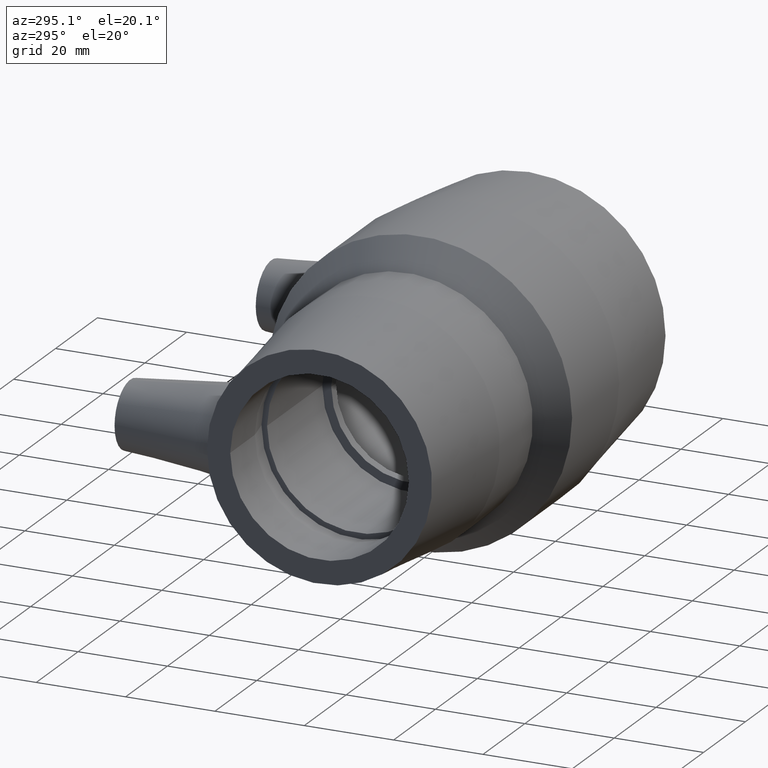
[diagram: clean part render]
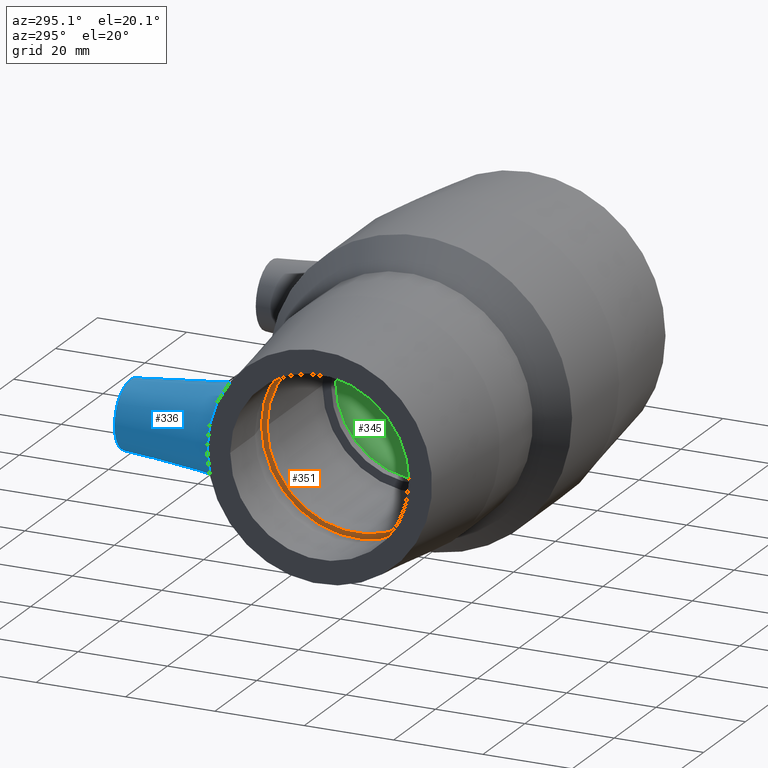
[diagram: same view with three faces highlighted in distinct colors, each labeled with its STEP entity id]
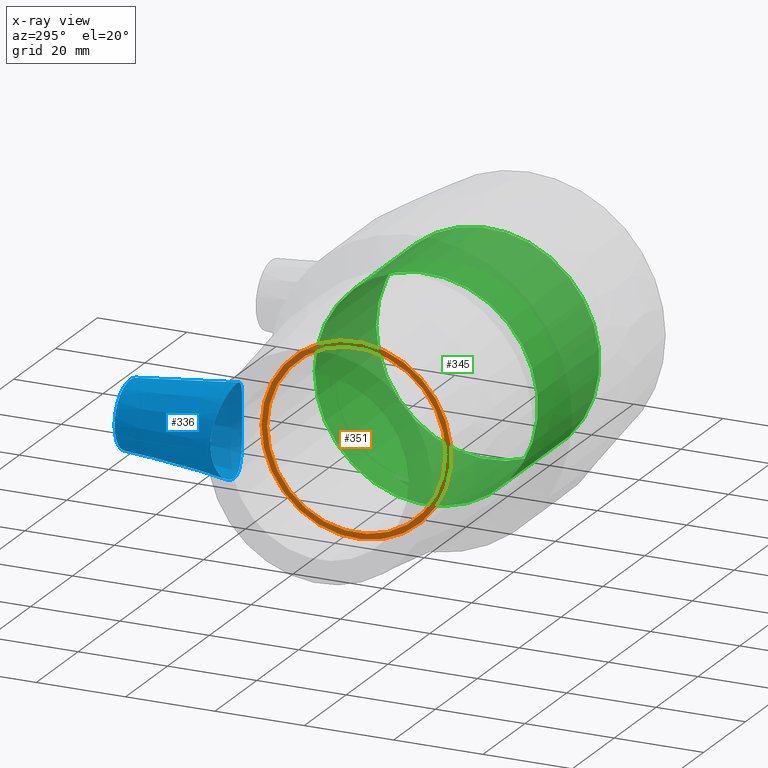
[diagram: x-ray of the same camera — body ghosted, the three highlighted faces saturated]
A machine part, auxiliary view with three faces highlighted in distinct colors.
The next image is the same camera in x-ray (body ghosted, the three faces saturated) — at least one of them is partly hidden behind the body in this view.
Their STEP definitions:

[orange] entity #351 — the highlighted planar face has unit normal (-1, -0, 0).
#50=FACE_BOUND('',#150,.T.);
#93=FACE_OUTER_BOUND('',#149,.T.);
#149=EDGE_LOOP('',(#302));
#150=EDGE_LOOP('',(#303));
#184=CIRCLE('',#408,20.);
#185=CIRCLE('',#410,21.2469984951308);
#215=VERTEX_POINT('',#685);
#216=VERTEX_POINT('',#688);
#246=EDGE_CURVE('',#215,#215,#184,.T.);
#247=EDGE_CURVE('',#216,#216,#185,.T.);
#302=ORIENTED_EDGE('',*,*,#247,.F.);
#303=ORIENTED_EDGE('',*,*,#246,.T.);
#323=PLANE('',#409);
#351=ADVANCED_FACE('',(#93,#50),#323,.T.);
#408=AXIS2_PLACEMENT_3D('',#686,#520,#521);
#409=AXIS2_PLACEMENT_3D('',#687,#522,#523);
#410=AXIS2_PLACEMENT_3D('',#689,#524,#525);
#520=DIRECTION('center_axis',(1.,1.83697019872103E-16,0.));
#521=DIRECTION('ref_axis',(0.,0.,-1.));
#522=DIRECTION('center_axis',(-1.,-1.83697019872103E-16,0.));
#523=DIRECTION('ref_axis',(0.,0.,1.));
#524=DIRECTION('center_axis',(1.,1.83697019872103E-16,0.));
#525=DIRECTION('ref_axis',(0.,0.,-1.));
#685=CARTESIAN_POINT('',(-32.4,20.,0.));
#686=CARTESIAN_POINT('Origin',(-32.4,3.23306754974901E-15,0.));
#687=CARTESIAN_POINT('Origin',(-32.4,21.2469984951308,0.));
#688=CARTESIAN_POINT('',(-32.4,21.2469984951308,0.));
#689=CARTESIAN_POINT('Origin',(-32.4,3.23306754974901E-15,0.));

[blue] entity #336 — the highlighted conical surface has half-angle 6 deg.
#16=B_SPLINE_CURVE_WITH_KNOTS('',3,(#609,#610,#611,#612,#613,#614,#615,
#616,#617,#618,#619,#620,#621,#622,#623,#624,#625,#626,#627,#628,#629,#630,
#631,#632,#633,#634,#635,#636,#637,#638,#639,#640,#641,#642),
 .UNSPECIFIED.,.T.,.F.,(4,2,2,2,2,2,2,2,2,2,2,2,2,2,2,2,4),(0.,0.361943596888965,
0.723887193777931,1.08941629483366,1.45494539588939,1.82047449694512,2.18600359800085,
2.54794719488982,2.90989079177879,3.30576732530484,3.70164385883088,4.08555674775356,
4.46946963667623,4.85338252559891,5.23729541452158,5.63317194804763,6.02904848157368),
 .UNSPECIFIED.);
#18=CONICAL_SURFACE('',#379,7.5,6.);
#34=FACE_BOUND('',#119,.T.);
#78=FACE_OUTER_BOUND('',#118,.T.);
#118=EDGE_LOOP('',(#271));
#119=EDGE_LOOP('',(#272));
#169=CIRCLE('',#378,7.5);
#199=VERTEX_POINT('',#605);
#200=VERTEX_POINT('',#608);
#230=EDGE_CURVE('',#199,#199,#169,.T.);
#231=EDGE_CURVE('',#200,#200,#16,.T.);
#271=ORIENTED_EDGE('',*,*,#230,.T.);
#272=ORIENTED_EDGE('',*,*,#231,.F.);
#336=ADVANCED_FACE('',(#78,#34),#18,.T.);
#378=AXIS2_PLACEMENT_3D('',#606,#460,#461);
#379=AXIS2_PLACEMENT_3D('',#607,#462,#463);
#460=DIRECTION('center_axis',(0.,-1.,0.));
#461=DIRECTION('ref_axis',(1.,0.,0.));
#462=DIRECTION('center_axis',(0.,-1.,0.));
#463=DIRECTION('ref_axis',(1.,0.,0.));
#605=CARTESIAN_POINT('',(-45.5,48.,9.18485099360515E-16));
#606=CARTESIAN_POINT('Origin',(-38.,48.,0.));
#607=CARTESIAN_POINT('Origin',(-38.,48.,0.));
#608=CARTESIAN_POINT('',(-38.5012523197046,24.470020217716,9.96049598715385));
#609=CARTESIAN_POINT('Ctrl Pts',(-38.5012523197046,24.470020217716,9.96049598715385));
#610=CARTESIAN_POINT('Ctrl Pts',(-39.7010019434823,24.3521637538701,9.91252263753042));
#611=CARTESIAN_POINT('Ctrl Pts',(-40.9729489293836,24.3297913743947,9.62014234649662));
#612=CARTESIAN_POINT('Ctrl Pts',(-43.2904237879436,24.4658139477323,8.55053278822265));
#613=CARTESIAN_POINT('Ctrl Pts',(-44.3366114362158,24.6174326050331,7.773882196001));
#614=CARTESIAN_POINT('Ctrl Pts',(-45.9830079409301,24.9247450482363,6.02027983612236));
#615=CARTESIAN_POINT('Ctrl Pts',(-46.6956295561316,25.1015400717959,4.91864566609986));
#616=CARTESIAN_POINT('Ctrl Pts',(-47.6406195415798,25.3540616460062,2.51800296211801));
#617=CARTESIAN_POINT('Ctrl Pts',(-47.8726622389102,25.4256267322368,1.21843033685244));
#618=CARTESIAN_POINT('Ctrl Pts',(-47.8726622389102,25.4256267322368,-1.21843033685244));
#619=CARTESIAN_POINT('Ctrl Pts',(-47.6406195415798,25.3540616460062,-2.51800296211801));
#620=CARTESIAN_POINT('Ctrl Pts',(-46.6956295561316,25.1015400717959,-4.91864566609986));
#621=CARTESIAN_POINT('Ctrl Pts',(-45.9830079409301,24.9247450482363,-6.02027983612236));
#622=CARTESIAN_POINT('Ctrl Pts',(-44.3366114362158,24.6174326050331,-7.773882196001));
#623=CARTESIAN_POINT('Ctrl Pts',(-43.2904237879436,24.4658139477323,-8.55053278822265));
#624=CARTESIAN_POINT('Ctrl Pts',(-40.9729489293836,24.3297913743947,-9.62014234649662));
#625=CARTESIAN_POINT('Ctrl Pts',(-39.7010019434823,24.3521637538701,-9.91252263753041));
#626=CARTESIAN_POINT('Ctrl Pts',(-37.1890237674033,24.5989259609367,-10.012966934323));
#627=CARTESIAN_POINT('Ctrl Pts',(-35.8089557113109,24.8559128491137,-9.78217299145423));
#628=CARTESIAN_POINT('Ctrl Pts',(-33.2927141137259,25.5120447262432,-8.77313472309622));
#629=CARTESIAN_POINT('Ctrl Pts',(-32.1543412288464,25.9038773275232,-7.99563457567486));
#630=CARTESIAN_POINT('Ctrl Pts',(-30.3850914502599,26.5793154897828,-6.21521636869501));
#631=CARTESIAN_POINT('Ctrl Pts',(-29.6225245456415,26.9109461292458,-5.10007156591928));
#632=CARTESIAN_POINT('Ctrl Pts',(-28.602029035852,27.3717405020476,-2.63289635849955));
#633=CARTESIAN_POINT('Ctrl Pts',(-28.3450205628224,27.496740243337,-1.27970962974225));
#634=CARTESIAN_POINT('Ctrl Pts',(-28.3450205628224,27.496740243337,1.27970962974225));
#635=CARTESIAN_POINT('Ctrl Pts',(-28.602029035852,27.3717405020476,2.63289635849954));
#636=CARTESIAN_POINT('Ctrl Pts',(-29.6225245456415,26.9109461292458,5.10007156591928));
#637=CARTESIAN_POINT('Ctrl Pts',(-30.3850914502599,26.5793154897828,6.21521636869501));
#638=CARTESIAN_POINT('Ctrl Pts',(-32.1543412288463,25.9038773275232,7.99563457567486));
#639=CARTESIAN_POINT('Ctrl Pts',(-33.2927141137259,25.5120447262432,8.77313472309621));
#640=CARTESIAN_POINT('Ctrl Pts',(-35.8089557113109,24.8559128491137,9.78217299145423));
#641=CARTESIAN_POINT('Ctrl Pts',(-37.1890237674033,24.5989259609367,10.012966934323));
#642=CARTESIAN_POINT('Ctrl Pts',(-38.5012523197046,24.470020217716,9.96049598715385));

[green] entity #345 — the highlighted cylindrical surface (bore or boss wall) has radius 25 mm, axis along (1, 0, 0).
#44=FACE_BOUND('',#138,.T.);
#63=CYLINDRICAL_SURFACE('',#397,25.);
#87=FACE_OUTER_BOUND('',#137,.T.);
#137=EDGE_LOOP('',(#290));
#138=EDGE_LOOP('',(#291));
#178=CIRCLE('',#396,25.);
#179=CIRCLE('',#398,25.);
#209=VERTEX_POINT('',#667);
#210=VERTEX_POINT('',#670);
#240=EDGE_CURVE('',#209,#209,#178,.T.);
#241=EDGE_CURVE('',#210,#210,#179,.T.);
#290=ORIENTED_EDGE('',*,*,#241,.F.);
#291=ORIENTED_EDGE('',*,*,#240,.T.);
#345=ADVANCED_FACE('',(#87,#44),#63,.F.);
#396=AXIS2_PLACEMENT_3D('',#668,#496,#497);
#397=AXIS2_PLACEMENT_3D('',#669,#498,#499);
#398=AXIS2_PLACEMENT_3D('',#671,#500,#501);
#496=DIRECTION('center_axis',(1.,1.83697019872103E-16,0.));
#497=DIRECTION('ref_axis',(0.,0.,-1.));
#498=DIRECTION('center_axis',(1.,1.83697019872103E-16,0.));
#499=DIRECTION('ref_axis',(-1.68112701893672E-16,1.,0.));
#500=DIRECTION('center_axis',(1.,1.83697019872103E-16,0.));
#501=DIRECTION('ref_axis',(0.,0.,-1.));
#667=CARTESIAN_POINT('',(30.4,25.,0.));
#668=CARTESIAN_POINT('Origin',(30.4,1.47692403977171E-14,0.));
#669=CARTESIAN_POINT('Origin',(15.7,1.20688942055972E-14,0.));
#670=CARTESIAN_POINT('',(0.999999999999996,25.,0.));
#671=CARTESIAN_POINT('Origin',(1.,9.36854801347725E-15,0.));